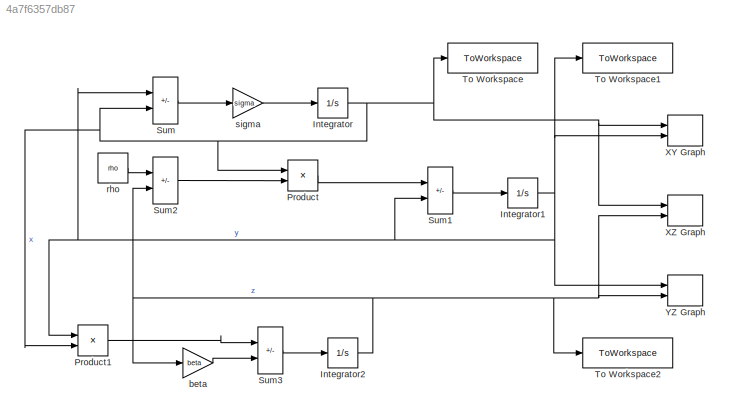
MODEL slx_4a7f6357db87
KIND model
CONFIG AbsTol = auto
CONFIG EnableMultiTasking = off
CONFIG FixedStep = auto
CONFIG InitFcn = sigma=10;\nrho=28;\nbeta=8/3;\nX0=1;\nY0=1;\nZ0=1;
CONFIG MaxStep = 0.001
CONFIG MinStep = auto
CONFIG RelTol = 1e-3
CONFIG SampleTimeConstraint = Unconstrained
CONFIG SolverName = VariableStepAuto
CONFIG StartTime = 0.0
CONFIG StopTime = 50
BLOCK [Integrator] Integrator
  InitialCondition = X0
  Ports = [1, 1]
BLOCK [Integrator] Integrator1
  InitialCondition = Y0
  Ports = [1, 1]
BLOCK [Integrator] Integrator2
  InitialCondition = Z0
  Ports = [1, 1]
BLOCK [Product] Product
  Ports = [2, 1]
BLOCK [Product] Product1
  Ports = [2, 1]
BLOCK [Sum] Sum
  IconShape = rectangular
  Inputs = +-
  Ports = [2, 1]
BLOCK [Sum] Sum1
  IconShape = rectangular
  Inputs = +-
  Ports = [2, 1]
BLOCK [Sum] Sum2
  IconShape = rectangular
  Inputs = +-
  Ports = [2, 1]
BLOCK [Sum] Sum3
  IconShape = rectangular
  Inputs = +-
  Ports = [2, 1]
BLOCK [ToWorkspace] To Workspace
  FixptAsFi = on
  MaxDataPoints = inf
  Ports = [1]
  SampleTime = -1
  VariableName = X
BLOCK [ToWorkspace] To Workspace1
  FixptAsFi = on
  MaxDataPoints = inf
  Ports = [1]
  SampleTime = -1
  VariableName = Y
BLOCK [ToWorkspace] To Workspace2
  FixptAsFi = on
  MaxDataPoints = inf
  Ports = [1]
  SampleTime = -1
  VariableName = Z
BLOCK [Record] XY Graph
  CompatibilityTag = XY
  FileSettingsInternal = {"entries":[{"content":{"excelSettings":{"content":{},"type":"Streamout.ExcelSettings"}},"type":"Streamout.FileSettingStorage","uuid":"d5e8e67d-65f5-439d-baf3-5cfe0ea3069c"}],"packageUris":["http://schema.mathworks.com/mf0/streamout_blocks/R2020a"],"version":"1.0"}
  Layout = [1 1]
  Ports = [2]
  SignalsInternal = {"entries":[{"content":{"signals":[{"content":{"blockPath":["E2_3/XY Graph"],"channel":[],"dimensions":[1],"domain":"E2_3/XY Graph","lineColor":"#edb120","plots":[],"port":1,"sid":[""],"signalID":341,"signalName":"x"},"type":"RecordBlkView.Signal","uuid":"27801372-b7ba-455c-83ab-0dae9fb10c2f"},{"content":{"blockPath":["E2_3/XY Graph"],"channel":[],"dimensions":[1],"domain":"E2_3/XY Graph","lineCol...<+331ch>
  VisualizationBindings = {"xyplotplugin":{"info":[{"series":[],"subplotID":1}]}}
BLOCK [Record] XZ Graph
  CompatibilityTag = XY
  FileSettingsInternal = {"entries":[{"content":{"excelSettings":{"content":{},"type":"Streamout.ExcelSettings"}},"type":"Streamout.FileSettingStorage","uuid":"8417785a-8a9f-43dc-9b60-5e8633ed2ac2"}],"packageUris":["http://schema.mathworks.com/mf0/streamout_blocks/R2020a"],"version":"1.0"}
  Layout = [1 1]
  Ports = [2]
  SignalsInternal = {"entries":[{"content":{"signals":[{"content":{"blockPath":["E2_3/XZ Graph"],"channel":[],"dimensions":[1],"domain":"E2_3/XZ Graph","lineColor":"#77ac30","plots":[],"port":1,"sid":[""],"signalID":349,"signalName":"x"},"type":"RecordBlkView.Signal","uuid":"21979492-c1fc-4b5b-8984-de8e808e6029"},{"content":{"blockPath":["E2_3/XZ Graph"],"channel":[],"dimensions":[1],"domain":"E2_3/XZ Graph","lineCol...<+331ch>
  VisualizationBindings = {"xyplotplugin":{"info":[{"series":[],"subplotID":1}]}}
BLOCK [Record] YZ Graph
  CompatibilityTag = XY
  FileSettingsInternal = {"entries":[{"content":{"excelSettings":{"content":{},"type":"Streamout.ExcelSettings"}},"type":"Streamout.FileSettingStorage","uuid":"93e8490c-106e-4821-a1e8-deccf6a70005"}],"packageUris":["http://schema.mathworks.com/mf0/streamout_blocks/R2020a"],"version":"1.0"}
  Layout = [1 1]
  Ports = [2]
  SignalsInternal = {"entries":[{"content":{"signals":[{"content":{"blockPath":["E2_3/YZ Graph"],"channel":[],"dimensions":[1],"domain":"E2_3/YZ Graph","lineColor":"#a2142f","plots":[],"port":1,"sid":[""],"signalID":357,"signalName":"y"},"type":"RecordBlkView.Signal","uuid":"31b0451c-853f-492d-9b4a-180c6c12fc6f"},{"content":{"blockPath":["E2_3/YZ Graph"],"channel":[],"dimensions":[1],"domain":"E2_3/YZ Graph","lineCol...<+331ch>
  VisualizationBindings = {"xyplotplugin":{"info":[{"series":[],"subplotID":1}]}}
BLOCK [Gain] beta
  Gain = beta
BLOCK [Constant] rho
  Value = rho
BLOCK [Gain] sigma
  Gain = sigma
NET Integrator1:1 -> Product1:1, Sum1:2, Sum:1, To Workspace1:1, XY Graph:2, YZ Graph:1
NET Integrator2:1 -> Sum2:2, To Workspace2:1, XZ Graph:2, YZ Graph:2, beta:1
NET Integrator:1 -> Product1:2, Product:1, Sum:2, To Workspace:1, XY Graph:1, XZ Graph:1
LINE Product1:1 -> Sum3:1
LINE Product:1 -> Sum1:1
LINE Sum1:1 -> Integrator1:1
LINE Sum2:1 -> Product:2
LINE Sum3:1 -> Integrator2:1
LINE Sum:1 -> sigma:1
LINE beta:1 -> Sum3:2
LINE rho:1 -> Sum2:1
LINE sigma:1 -> Integrator:1
note: NET lines group one-source signal fan-out (src -> all destinations, sorted); 1:1 wires keep LINE
